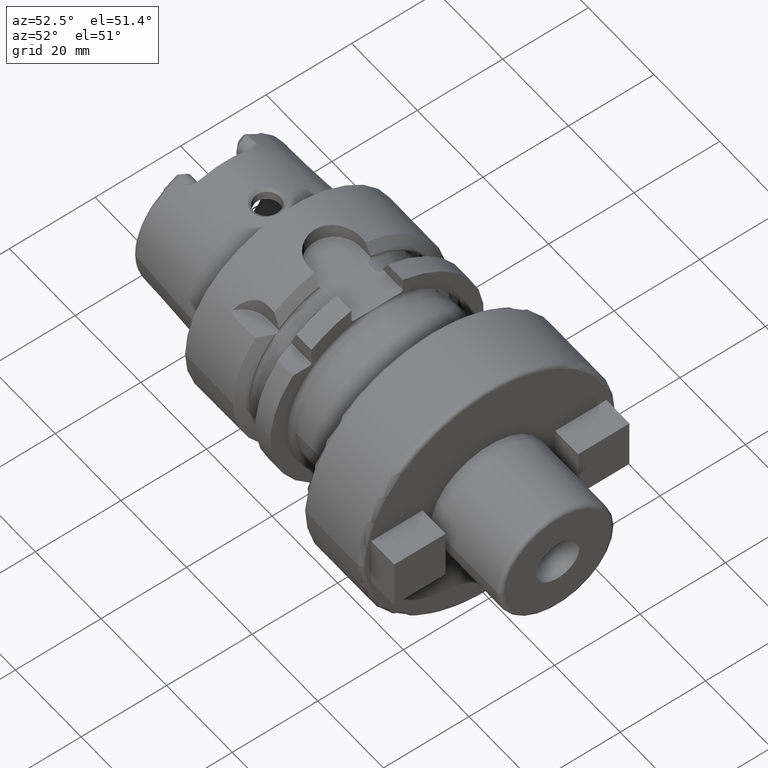
[diagram: clean part render]
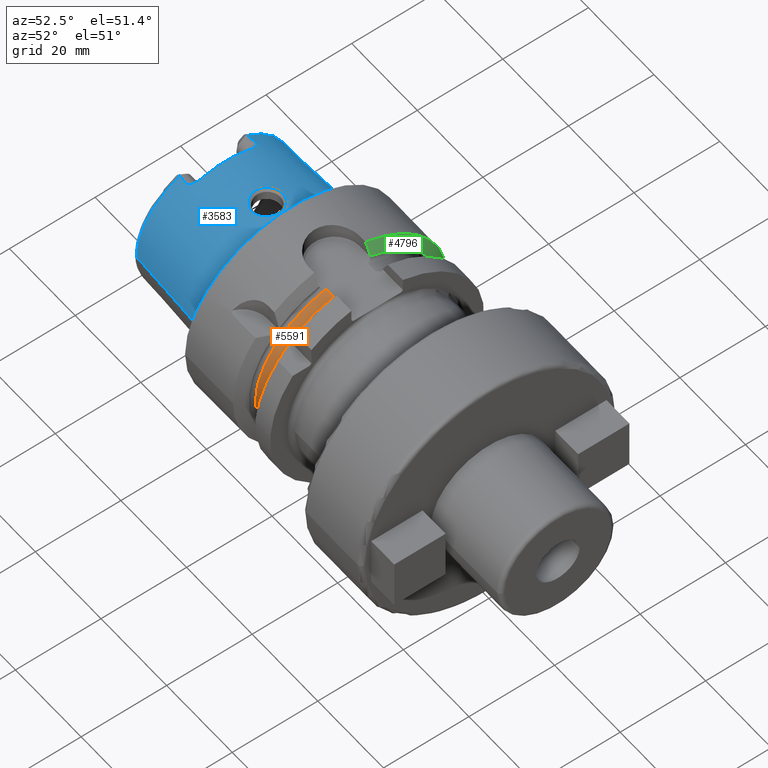
[diagram: same view with three faces highlighted in distinct colors, each labeled with its STEP entity id]
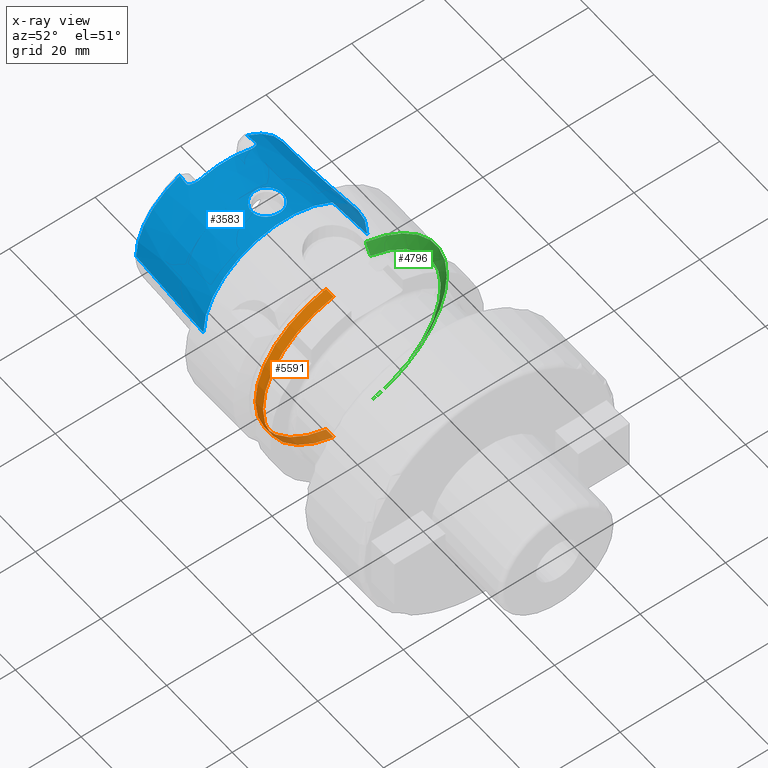
[diagram: x-ray of the same camera — body ghosted, the three highlighted faces saturated]
A machine part, auxiliary view with three faces highlighted in distinct colors.
The next image is the same camera in x-ray (body ghosted, the three faces saturated) — at least one of them is partly hidden behind the body in this view.
Their STEP definitions:

[orange] entity #5591 — the highlighted cylindrical surface (partial cylindrical patch) has radius 21.475 mm, axis along (1, 0, 0).
#1898=DIRECTION('',(-1.E0,0.E0,0.E0));
#1899=VECTOR('',#1898,2.325E0);
#1900=CARTESIAN_POINT('',(1.91625E1,-4.936154880066E0,-2.09E1));
#1901=LINE('',#1900,#1899);
#1902=CARTESIAN_POINT('',(1.68375E1,0.E0,0.E0));
#1903=DIRECTION('',(-1.E0,0.E0,0.E0));
#1904=DIRECTION('',(0.E0,-2.298558733442E-1,-9.732246798603E-1));
#1905=AXIS2_PLACEMENT_3D('',#1902,#1903,#1904);
#1907=DIRECTION('',(1.E0,0.E0,0.E0));
#1908=VECTOR('',#1907,2.325E0);
#1909=CARTESIAN_POINT('',(1.68375E1,-4.936154880066E0,2.09E1));
#1910=LINE('',#1909,#1908);
#1916=CARTESIAN_POINT('',(1.91625E1,0.E0,0.E0));
#1917=DIRECTION('',(-1.E0,0.E0,0.E0));
#1918=DIRECTION('',(0.E0,-2.298558733442E-1,-9.732246798603E-1));
#1919=AXIS2_PLACEMENT_3D('',#1916,#1917,#1918);
#3218=CARTESIAN_POINT('',(1.68375E1,-4.936154880066E0,-2.09E1));
#3219=CARTESIAN_POINT('',(1.68375E1,-4.936154880066E0,2.09E1));
#3220=VERTEX_POINT('',#3218);
#3221=VERTEX_POINT('',#3219);
#3226=CARTESIAN_POINT('',(1.91625E1,-4.936154880066E0,-2.09E1));
#3227=CARTESIAN_POINT('',(1.91625E1,-4.936154880066E0,2.09E1));
#3228=VERTEX_POINT('',#3226);
#3229=VERTEX_POINT('',#3227);
#5579=CARTESIAN_POINT('',(1.415E1,0.E0,0.E0));
#5580=DIRECTION('',(1.E0,0.E0,0.E0));
#5581=DIRECTION('',(0.E0,-1.E0,0.E0));
#5582=AXIS2_PLACEMENT_3D('',#5579,#5580,#5581);
#5583=CYLINDRICAL_SURFACE('',#5582,2.1475E1);
#5584=ORIENTED_EDGE('',*,*,#4915,.T.);
#5585=ORIENTED_EDGE('',*,*,#5529,.T.);
#5586=ORIENTED_EDGE('',*,*,#4989,.T.);
#5588=ORIENTED_EDGE('',*,*,#5587,.F.);
#5589=EDGE_LOOP('',(#5584,#5585,#5586,#5588));
#5590=FACE_OUTER_BOUND('',#5589,.F.);
#5591=ADVANCED_FACE('',(#5590),#5583,.T.);
#1906=CIRCLE('',#1905,2.1475E1);
#1920=CIRCLE('',#1919,2.1475E1);
#4915=EDGE_CURVE('',#3228,#3220,#1901,.T.);
#4989=EDGE_CURVE('',#3221,#3229,#1910,.T.);
#5529=EDGE_CURVE('',#3220,#3221,#1906,.T.);
#5587=EDGE_CURVE('',#3228,#3229,#1920,.T.);

[blue] entity #3583 — the highlighted conical surface has half-angle 2.868 deg.
#2=CARTESIAN_POINT('',(-2.395003724237E1,-7.848512546022E0,1.626E1));
#3=CARTESIAN_POINT('',(-2.357924685714E1,-7.891247063705E0,1.626E1));
#4=CARTESIAN_POINT('',(-2.283344964494E1,-7.976635944030E0,1.626E1));
#5=CARTESIAN_POINT('',(-2.207922143332E1,-8.061880664518E0,1.626E1));
#6=CARTESIAN_POINT('',(-2.17E1,-8.104470797584E0,1.626E1));
#8=CARTESIAN_POINT('',(-2.03E1,0.E0,0.E0));
#9=DIRECTION('',(1.E0,0.E0,0.E0));
#10=DIRECTION('',(0.E0,3.252089046527E-1,9.456421988969E-1));
#11=AXIS2_PLACEMENT_3D('',#8,#9,#10);
#13=CARTESIAN_POINT('',(-2.17E1,8.104470797584E0,1.626E1));
#14=CARTESIAN_POINT('',(-2.207921342399E1,8.061881564041E0,1.626E1));
#15=CARTESIAN_POINT('',(-2.283343362880E1,7.976637765712E0,1.626E1));
#16=CARTESIAN_POINT('',(-2.357923885045E1,7.891247986496E0,1.626E1));
#17=CARTESIAN_POINT('',(-2.395003724237E1,7.848512546022E0,1.626E1));
#19=CARTESIAN_POINT('',(-2.E0,0.E0,0.E0));
#20=DIRECTION('',(1.E0,0.E0,0.E0));
#21=DIRECTION('',(0.E0,1.E0,0.E0));
#22=AXIS2_PLACEMENT_3D('',#19,#20,#21);
#24=CARTESIAN_POINT('',(-1.109929870960E1,-3.014221416256E-9,1.869887476944E1));
#25=CARTESIAN_POINT('',(-1.109945925242E1,1.886319535952E-1,1.869886672624E1));
#26=CARTESIAN_POINT('',(-1.107009168020E1,5.664763956957E-1,1.869480469033E1));
#27=CARTESIAN_POINT('',(-1.092852645341E1,1.148622081174E0,1.867514320096E1));
#28=CARTESIAN_POINT('',(-1.068761462296E1,1.704920402697E0,1.864430827966E1));
#29=CARTESIAN_POINT('',(-1.035800427398E1,2.210391705650E0,1.860721858945E1));
#30=CARTESIAN_POINT('',(-9.956571457299E0,2.646528342491E0,1.856998438485E1));
#31=CARTESIAN_POINT('',(-9.482180445587E0,3.015935220411E0,1.853715943967E1));
#32=CARTESIAN_POINT('',(-8.954999291132E0,3.300109899598E0,1.851503858938E1));
#33=CARTESIAN_POINT('',(-8.389140640557E0,3.493968846930E0,1.850796335816E1));
#34=CARTESIAN_POINT('',(-7.797320683708E0,3.593006921983E0,1.851902489885E1));
#35=CARTESIAN_POINT('',(-7.195102304437E0,3.593647232189E0,1.854964302437E1));
#36=CARTESIAN_POINT('',(-6.600491430740E0,3.495005174178E0,1.859898554839E1));
#37=CARTESIAN_POINT('',(-6.030596486868E0,3.299291684191E0,1.866403807124E1));
#38=CARTESIAN_POINT('',(-5.501482393751E0,3.011836541822E0,1.873990477193E1));
#39=CARTESIAN_POINT('',(-5.029104687073E0,2.639928583606E0,1.882027271501E1));
#40=CARTESIAN_POINT('',(-4.631634616367E0,2.203529810045E0,1.889690659120E1));
#41=CARTESIAN_POINT('',(-4.305482049942E0,1.697229296807E0,1.896603905152E1));
#42=CARTESIAN_POINT('',(-4.067927972751E0,1.141444662126E0,1.901987475357E1));
#43=CARTESIAN_POINT('',(-3.929055735054E0,5.612533791160E-1,1.905280029071E1));
#44=CARTESIAN_POINT('',(-3.900610911648E0,1.865123193107E-1,1.905953154444E1));
#45=CARTESIAN_POINT('',(-3.900703803433E0,4.688328467960E-10,1.905952689056E1));
#47=CARTESIAN_POINT('',(-3.900703803433E0,4.688328467960E-10,1.905952689056E1));
#48=CARTESIAN_POINT('',(-3.900565316566E0,-1.869068172543E-1,1.905953382875E1));
#49=CARTESIAN_POINT('',(-3.929209078756E0,-5.619643930347E-1,1.905275967237E1));
#50=CARTESIAN_POINT('',(-4.067587416071E0,-1.139939244924E0,1.901996042633E1));
#51=CARTESIAN_POINT('',(-4.304083353262E0,-1.694649477574E0,1.896633950966E1));
#52=CARTESIAN_POINT('',(-4.630377715431E0,-2.202039946174E0,1.889716591493E1));
#53=CARTESIAN_POINT('',(-5.030592742710E0,-2.641727212383E0,1.881996573115E1));
#54=CARTESIAN_POINT('',(-5.506115942833E0,-3.014998208087E0,1.873916244837E1));
#55=CARTESIAN_POINT('',(-6.036759347171E0,-3.302003787672E0,1.866323991975E1));
#56=CARTESIAN_POINT('',(-6.606224693834E0,-3.496380993107E0,1.859843104427E1));
#57=CARTESIAN_POINT('',(-7.200154597760E0,-3.594034785278E0,1.854930943768E1));
#58=CARTESIAN_POINT('',(-7.802229994140E0,-3.592594248023E0,1.851885498035E1));
#59=CARTESIAN_POINT('',(-8.394131860627E0,-3.492723564974E0,1.850794649148E1));
#60=CARTESIAN_POINT('',(-8.959854335096E0,-3.297955703516E0,1.851517847778E1));
#61=CARTESIAN_POINT('',(-9.485898814950E0,-3.013450655427E0,1.853737508929E1));
#62=CARTESIAN_POINT('',(-9.958289131427E0,-2.644672127726E0,1.857015107163E1));
#63=CARTESIAN_POINT('',(-1.035781579914E1,-2.210534337623E0,1.860719549656E1));
#64=CARTESIAN_POINT('',(-1.068684091883E1,-1.706221052324E0,1.864422260745E1));
#65=CARTESIAN_POINT('',(-1.092821591145E1,-1.149779213026E0,1.867509790374E1));
#66=CARTESIAN_POINT('',(-1.107015122039E1,-5.663437022187E-1,1.869481438399E1));
#67=CARTESIAN_POINT('',(-1.109940105467E1,-1.885312797170E-1,1.869886964195E1));
#68=CARTESIAN_POINT('',(-1.109929870960E1,-3.014221416256E-9,1.869887476944E1));
#254=CARTESIAN_POINT('',(-2.088194182380E1,7.65E0,1.652387464585E1));
#255=CARTESIAN_POINT('',(-2.078252967156E1,7.507241224245E0,1.659545558861E1));
#256=CARTESIAN_POINT('',(-2.061118229026E1,7.217898198343E0,1.673432166657E1));
#257=CARTESIAN_POINT('',(-2.042453343151E1,6.765088338183E0,1.693246351741E1));
#258=CARTESIAN_POINT('',(-2.032087894102E1,6.330896569896E0,1.710473583165E1));
#259=CARTESIAN_POINT('',(-2.03E1,6.061283482817E0,1.720184088309E1));
#260=CARTESIAN_POINT('',(-2.03E1,5.931150246788E0,1.724659405422E1));
#317=CARTESIAN_POINT('',(-2.395003724237E1,0.E0,0.E0));
#318=DIRECTION('',(1.E0,0.E0,0.E0));
#319=DIRECTION('',(0.E0,1.E0,0.E0));
#320=AXIS2_PLACEMENT_3D('',#317,#318,#319);
#391=CARTESIAN_POINT('',(-2.395003724237E1,0.E0,0.E0));
#392=DIRECTION('',(1.E0,0.E0,0.E0));
#393=DIRECTION('',(0.E0,-4.346977410045E-1,9.005764120637E-1));
#394=AXIS2_PLACEMENT_3D('',#391,#392,#393);
#557=DIRECTION('',(-9.987473526255E-1,5.003724236654E-2,0.E0));
#558=VECTOR('',#557,2.197756738445E1);
#559=CARTESIAN_POINT('',(-2.E0,-1.91548E1,0.E0));
#560=LINE('',#559,#558);
#566=DIRECTION('',(-9.987473526255E-1,-5.003724236654E-2,0.E0));
#567=VECTOR('',#566,2.197756738445E1);
#568=CARTESIAN_POINT('',(-2.E0,1.91548E1,0.E0));
#569=LINE('',#568,#567);
#2874=CARTESIAN_POINT('',(-2.03E1,-5.931150246788E0,1.724659405422E1));
#2875=CARTESIAN_POINT('',(-2.03E1,-6.061334007092E0,1.720182350766E1));
#2876=CARTESIAN_POINT('',(-2.032090311364E1,-6.331072330559E0,
1.710467013439E1));
#2877=CARTESIAN_POINT('',(-2.042460969072E1,-6.765396673643E0,
1.693234067442E1));
#2878=CARTESIAN_POINT('',(-2.061156183678E1,-7.218659036027E0,
1.673397288432E1));
#2879=CARTESIAN_POINT('',(-2.078273524221E1,-7.507536429743E0,
1.659530756908E1));
#2880=CARTESIAN_POINT('',(-2.088194182380E1,-7.65E0,1.652387464585E1));
#2952=CARTESIAN_POINT('',(-2.088194182380E1,-7.65E0,1.652387464585E1));
#2953=CARTESIAN_POINT('',(-2.092084236684E1,-7.705862324432E0,
1.649586461405E1));
#2954=CARTESIAN_POINT('',(-2.100216211286E1,-7.807981545915E0,
1.644339247740E1));
#2955=CARTESIAN_POINT('',(-2.113409150154E1,-7.931926358997E0,
1.637652980081E1));
#2956=CARTESIAN_POINT('',(-2.127636416926E1,-8.025677176369E0,
1.632276786529E1));
#2957=CARTESIAN_POINT('',(-2.142000730447E1,-8.084211699040E0,
1.628576763274E1));
#2958=CARTESIAN_POINT('',(-2.155951099500E1,-8.110794838366E0,
1.626471314411E1));
#2959=CARTESIAN_POINT('',(-2.165342169015E1,-8.109701979792E0,1.626E1));
#2960=CARTESIAN_POINT('',(-2.17E1,-8.104470797584E0,1.626E1));
#2970=CARTESIAN_POINT('',(-2.17E1,8.104470797584E0,1.626E1));
#2971=CARTESIAN_POINT('',(-2.164341871280E1,8.110825408214E0,1.626E1));
#2972=CARTESIAN_POINT('',(-2.152922643185E1,8.110130493423E0,1.626674474105E1));
#2973=CARTESIAN_POINT('',(-2.135380007883E1,8.063783507483E0,1.629963066121E1));
#2974=CARTESIAN_POINT('',(-2.118690630545E1,7.973411379162E0,1.635344174223E1));
#2975=CARTESIAN_POINT('',(-2.102599266022E1,7.836188133821E0,1.642872288676E1));
#2976=CARTESIAN_POINT('',(-2.092846952965E1,7.716815154647E0,1.649037273512E1));
#2977=CARTESIAN_POINT('',(-2.088194182380E1,7.65E0,1.652387464585E1));
#2995=CARTESIAN_POINT('',(-2.E0,1.91548E1,0.E0));
#2996=CARTESIAN_POINT('',(-2.E0,-1.91548E1,0.E0));
#2997=VERTEX_POINT('',#2995);
#2998=VERTEX_POINT('',#2996);
#2999=CARTESIAN_POINT('',(-2.395003724237E1,1.805510313416E1,0.E0));
#3000=VERTEX_POINT('',#2999);
#3001=CARTESIAN_POINT('',(-2.395003724237E1,-1.805510313416E1,0.E0));
#3002=VERTEX_POINT('',#3001);
#3015=CARTESIAN_POINT('',(-2.395003724237E1,7.848512546022E0,1.626E1));
#3016=VERTEX_POINT('',#3015);
#3017=CARTESIAN_POINT('',(-2.395003724237E1,-7.848512546022E0,1.626E1));
#3018=VERTEX_POINT('',#3017);
#3031=CARTESIAN_POINT('',(-2.03E1,5.931150246788E0,1.724659405422E1));
#3032=VERTEX_POINT('',#3031);
#3035=CARTESIAN_POINT('',(-2.17E1,8.104470797584E0,1.626E1));
#3036=VERTEX_POINT('',#3035);
#3037=CARTESIAN_POINT('',(-2.03E1,-5.931150246788E0,1.724659405422E1));
#3038=VERTEX_POINT('',#3037);
#3041=CARTESIAN_POINT('',(-2.17E1,-8.104470797584E0,1.626E1));
#3042=VERTEX_POINT('',#3041);
#3043=VERTEX_POINT('',#2977);
#3044=VERTEX_POINT('',#2952);
#3309=VERTEX_POINT('',#24);
#3310=VERTEX_POINT('',#45);
#3546=CARTESIAN_POINT('',(-1.297501862118E1,0.E0,0.E0));
#3547=DIRECTION('',(1.E0,0.E0,0.E0));
#3548=DIRECTION('',(0.E0,-1.E0,0.E0));
#3549=AXIS2_PLACEMENT_3D('',#3546,#3547,#3548);
#3550=CONICAL_SURFACE('',#3549,1.860495156708E1,2.868120487315E0);
#3552=ORIENTED_EDGE('',*,*,#3551,.T.);
#3554=ORIENTED_EDGE('',*,*,#3553,.F.);
#3556=ORIENTED_EDGE('',*,*,#3555,.F.);
#3558=ORIENTED_EDGE('',*,*,#3557,.F.);
#3560=ORIENTED_EDGE('',*,*,#3559,.F.);
#3562=ORIENTED_EDGE('',*,*,#3561,.F.);
#3564=ORIENTED_EDGE('',*,*,#3563,.T.);
#3566=ORIENTED_EDGE('',*,*,#3565,.F.);
#3568=ORIENTED_EDGE('',*,*,#3567,.F.);
#3570=ORIENTED_EDGE('',*,*,#3569,.T.);
#3572=ORIENTED_EDGE('',*,*,#3571,.T.);
#3574=ORIENTED_EDGE('',*,*,#3573,.F.);
#3575=EDGE_LOOP('',(#3552,#3554,#3556,#3558,#3560,#3562,#3564,#3566,#3568,#3570,
#3572,#3574));
#3576=FACE_OUTER_BOUND('',#3575,.F.);
#3578=ORIENTED_EDGE('',*,*,#3577,.F.);
#3580=ORIENTED_EDGE('',*,*,#3579,.F.);
#3581=EDGE_LOOP('',(#3578,#3580));
#3582=FACE_BOUND('',#3581,.F.);
#3583=ADVANCED_FACE('',(#3576,#3582),#3550,.T.);
#7=B_SPLINE_CURVE_WITH_KNOTS('',3,(#2,#3,#4,#5,#6),.UNSPECIFIED.,.F.,.F.,(4,1,
4),(0.E0,5.E-1,1.E0),.UNSPECIFIED.);
#12=CIRCLE('',#11,1.823797E1);
#18=B_SPLINE_CURVE_WITH_KNOTS('',3,(#13,#14,#15,#16,#17),.UNSPECIFIED.,.F.,.F.,(
4,1,4),(0.E0,5.E-1,1.E0),.UNSPECIFIED.);
#23=CIRCLE('',#22,1.91548E1);
#46=B_SPLINE_CURVE_WITH_KNOTS('',3,(#24,#25,#26,#27,#28,#29,#30,#31,#32,#33,#34,
#35,#36,#37,#38,#39,#40,#41,#42,#43,#44,#45),.UNSPECIFIED.,.F.,.F.,(4,1,1,1,1,1,
1,1,1,1,1,1,1,1,1,1,1,1,1,4),(0.E0,5.263157894737E-2,1.052631578947E-1,
1.578947368421E-1,2.105263157895E-1,2.631578947368E-1,3.157894736842E-1,
3.684210526316E-1,4.210526315789E-1,4.736842105263E-1,5.263157894737E-1,
5.789473684211E-1,6.315789473684E-1,6.842105263158E-1,7.368421052632E-1,
7.894736842105E-1,8.421052631579E-1,8.947368421053E-1,9.473684210526E-1,1.E0),
.UNSPECIFIED.);
#69=B_SPLINE_CURVE_WITH_KNOTS('',3,(#47,#48,#49,#50,#51,#52,#53,#54,#55,#56,#57,
#58,#59,#60,#61,#62,#63,#64,#65,#66,#67,#68),.UNSPECIFIED.,.F.,.F.,(4,1,1,1,1,1,
1,1,1,1,1,1,1,1,1,1,1,1,1,4),(0.E0,5.263157894737E-2,1.052631578947E-1,
1.578947368421E-1,2.105263157895E-1,2.631578947368E-1,3.157894736842E-1,
3.684210526316E-1,4.210526315789E-1,4.736842105263E-1,5.263157894737E-1,
5.789473684211E-1,6.315789473684E-1,6.842105263158E-1,7.368421052632E-1,
7.894736842105E-1,8.421052631579E-1,8.947368421053E-1,9.473684210526E-1,1.E0),
.UNSPECIFIED.);
#261=B_SPLINE_CURVE_WITH_KNOTS('',3,(#254,#255,#256,#257,#258,#259,#260),
.UNSPECIFIED.,.F.,.F.,(4,1,1,1,4),(0.E0,2.5E-1,5.E-1,7.5E-1,1.E0),
.UNSPECIFIED.);
#321=CIRCLE('',#320,1.805510313416E1);
#395=CIRCLE('',#394,1.805510313416E1);
#2881=B_SPLINE_CURVE_WITH_KNOTS('',3,(#2874,#2875,#2876,#2877,#2878,#2879,
#2880),.UNSPECIFIED.,.F.,.F.,(4,1,1,1,4),(0.E0,2.5E-1,5.E-1,7.5E-1,1.E0),
.UNSPECIFIED.);
#2961=B_SPLINE_CURVE_WITH_KNOTS('',3,(#2952,#2953,#2954,#2955,#2956,#2957,#2958,
#2959,#2960),.UNSPECIFIED.,.F.,.F.,(4,1,1,1,1,1,4),(0.E0,1.666666666667E-1,
3.333333333333E-1,5.E-1,6.666666666667E-1,8.333333333333E-1,1.E0),
.UNSPECIFIED.);
#2978=B_SPLINE_CURVE_WITH_KNOTS('',3,(#2970,#2971,#2972,#2973,#2974,#2975,#2976,
#2977),.UNSPECIFIED.,.F.,.F.,(4,1,1,1,1,4),(0.E0,2.E-1,4.E-1,6.E-1,8.E-1,1.E0),
.UNSPECIFIED.);
#3551=EDGE_CURVE('',#3018,#3042,#7,.T.);
#3553=EDGE_CURVE('',#3044,#3042,#2961,.T.);
#3555=EDGE_CURVE('',#3038,#3044,#2881,.T.);
#3557=EDGE_CURVE('',#3032,#3038,#12,.T.);
#3559=EDGE_CURVE('',#3043,#3032,#261,.T.);
#3561=EDGE_CURVE('',#3036,#3043,#2978,.T.);
#3563=EDGE_CURVE('',#3036,#3016,#18,.T.);
#3565=EDGE_CURVE('',#3000,#3016,#321,.T.);
#3567=EDGE_CURVE('',#2997,#3000,#569,.T.);
#3569=EDGE_CURVE('',#2997,#2998,#23,.T.);
#3571=EDGE_CURVE('',#2998,#3002,#560,.T.);
#3573=EDGE_CURVE('',#3018,#3002,#395,.T.);
#3577=EDGE_CURVE('',#3309,#3310,#46,.T.);
#3579=EDGE_CURVE('',#3310,#3309,#69,.T.);

[green] entity #4796 — the highlighted conical surface has half-angle 60 deg.
#905=CARTESIAN_POINT('',(1.460806716851E1,0.E0,0.E0));
#906=DIRECTION('',(1.E0,0.E0,0.E0));
#907=DIRECTION('',(0.E0,1.E0,0.E0));
#908=AXIS2_PLACEMENT_3D('',#905,#906,#907);
#1139=CARTESIAN_POINT('',(1.460806716851E1,0.E0,0.E0));
#1140=DIRECTION('',(1.E0,0.E0,0.E0));
#1141=DIRECTION('',(0.E0,2.807E-1,-9.597955563556E-1));
#1142=AXIS2_PLACEMENT_3D('',#1139,#1140,#1141);
#1249=CARTESIAN_POINT('',(1.60875E1,0.E0,0.E0));
#1250=DIRECTION('',(1.E0,0.E0,0.E0));
#1251=DIRECTION('',(0.E0,3.127570026704E-1,-9.498331733945E-1));
#1252=AXIS2_PLACEMENT_3D('',#1249,#1250,#1251);
#1263=CARTESIAN_POINT('',(1.460806716851E1,7.0175E0,-2.399488890889E1));
#1264=CARTESIAN_POINT('',(1.478117030033E1,7.0175E0,-2.368250632149E1));
#1265=CARTESIAN_POINT('',(1.512156521149E1,7.0175E0,-2.306726652731E1));
#1266=CARTESIAN_POINT('',(1.561448175983E1,7.0175E0,-2.217337894395E1));
#1267=CARTESIAN_POINT('',(1.593174516263E1,7.0175E0,-2.159595049916E1));
#1268=CARTESIAN_POINT('',(1.60875E1,7.0175E0,-2.131192663117E1));
#1965=CARTESIAN_POINT('',(1.60875E1,6.0175E0,2.161557810313E1));
#1966=CARTESIAN_POINT('',(1.593105791815E1,6.0175E0,2.189684766575E1));
#1967=CARTESIAN_POINT('',(1.561287734067E1,6.0175E0,2.246811923109E1));
#1968=CARTESIAN_POINT('',(1.511991466436E1,6.0175E0,2.335091062741E1));
#1969=CARTESIAN_POINT('',(1.478046273423E1,6.0175E0,2.395734634398E1));
#1970=CARTESIAN_POINT('',(1.460806716851E1,6.0175E0,2.426498905316E1));
#3178=CARTESIAN_POINT('',(1.60875E1,6.0175E0,2.161557810313E1));
#3180=VERTEX_POINT('',#3178);
#3187=VERTEX_POINT('',#1970);
#3189=CARTESIAN_POINT('',(1.60875E1,7.0175E0,-2.131192663117E1));
#3191=VERTEX_POINT('',#3189);
#3197=VERTEX_POINT('',#1263);
#3329=CARTESIAN_POINT('',(1.460806716851E1,2.5E1,0.E0));
#3330=VERTEX_POINT('',#3329);
#4782=CARTESIAN_POINT('',(1.534778358426E1,0.E0,0.E0));
#4783=DIRECTION('',(-1.E0,0.E0,0.E0));
#4784=DIRECTION('',(0.E0,1.E0,0.E0));
#4785=AXIS2_PLACEMENT_3D('',#4782,#4783,#4784);
#4786=CONICAL_SURFACE('',#4785,2.371877358474E1,6.E1);
#4787=ORIENTED_EDGE('',*,*,#4518,.F.);
#4788=ORIENTED_EDGE('',*,*,#4650,.F.);
#4790=ORIENTED_EDGE('',*,*,#4789,.T.);
#4791=ORIENTED_EDGE('',*,*,#4716,.T.);
#4793=ORIENTED_EDGE('',*,*,#4792,.T.);
#4794=EDGE_LOOP('',(#4787,#4788,#4790,#4791,#4793));
#4795=FACE_OUTER_BOUND('',#4794,.F.);
#4796=ADVANCED_FACE('',(#4795),#4786,.T.);
#909=CIRCLE('',#908,2.5E1);
#1143=CIRCLE('',#1142,2.5E1);
#1253=CIRCLE('',#1252,2.243754716948E1);
#1269=B_SPLINE_CURVE_WITH_KNOTS('',3,(#1263,#1264,#1265,#1266,#1267,#1268),
.UNSPECIFIED.,.F.,.F.,(4,1,1,4),(0.E0,3.333333333333E-1,6.666666666667E-1,1.E0),
.UNSPECIFIED.);
#1971=B_SPLINE_CURVE_WITH_KNOTS('',3,(#1965,#1966,#1967,#1968,#1969,#1970),
.UNSPECIFIED.,.F.,.F.,(4,1,1,4),(0.E0,3.333333333333E-1,6.666666666667E-1,1.E0),
.UNSPECIFIED.);
#4518=EDGE_CURVE('',#3330,#3187,#909,.T.);
#4650=EDGE_CURVE('',#3197,#3330,#1143,.T.);
#4716=EDGE_CURVE('',#3191,#3180,#1253,.T.);
#4789=EDGE_CURVE('',#3197,#3191,#1269,.T.);
#4792=EDGE_CURVE('',#3180,#3187,#1971,.T.);